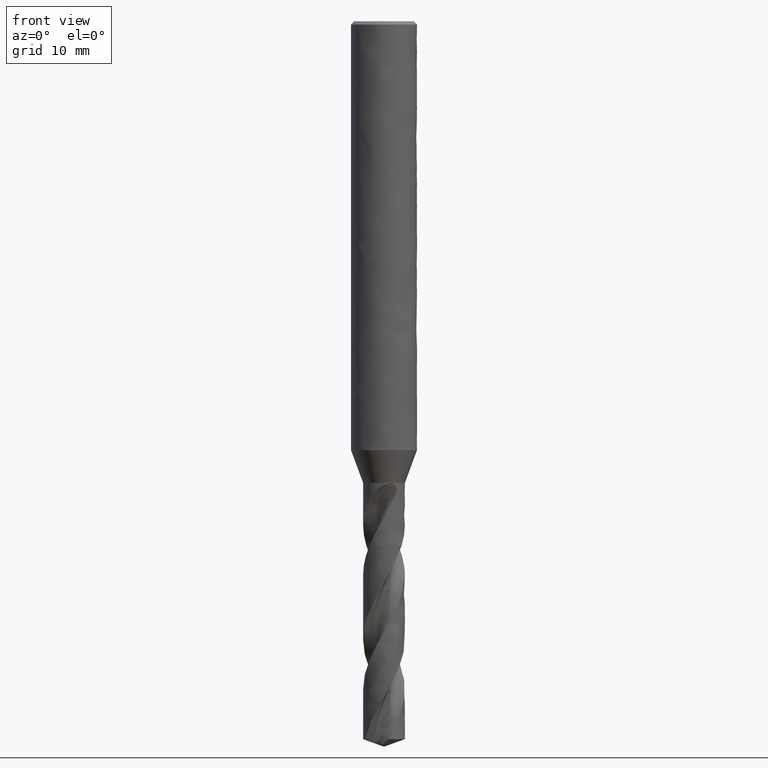
[diagram: clean part render]
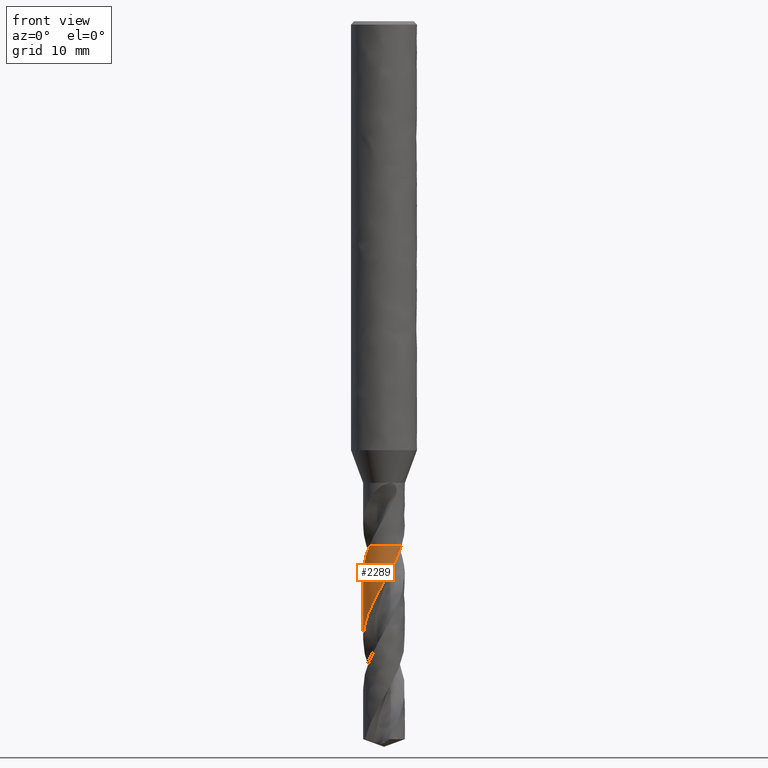
[diagram: same view with one face highlighted and labeled with its STEP entity id]
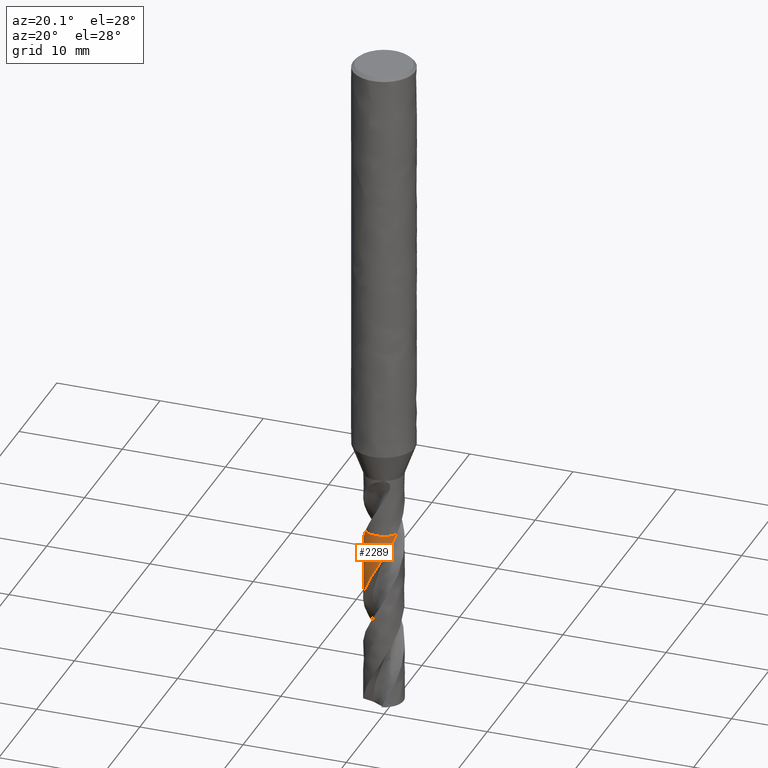
[diagram: same view with one face highlighted and labeled with its STEP entity id]
A machine part, front view. The second image highlights one B-rep face of the part: STEP entity #2289.
A second angle (auxiliary view) of the same face is appended — the face is thin or edge-on in the first view.
In plain terms, the highlighted face is a freeform B-spline surface patch.
Its self-contained STEP definition (entity closure, byte-faithful):
#1763 = EDGE_CURVE('', #1764, #1766, #1768, .T.);
#1764 = VERTEX_POINT('', #1765);
#1765 = CARTESIAN_POINT('', (1.60543953295215, -1.01615151726227, -47.7));
#1766 = VERTEX_POINT('', #1767);
#1767 = CARTESIAN_POINT('', (-1.31532390499543, -1.37110284987946, -47.7));
#1768 = CIRCLE('', #1769, 1.9);
#1769 = AXIS2_PLACEMENT_3D('', #1770, #1771, #1772);
#1770 = CARTESIAN_POINT('', (1.78846354082427E-31, 2.92078261596644E-15, -47.7));
#1771 = DIRECTION('', (3.74939945665464E-33, 6.12323399573677E-17, -1.));
#1772 = DIRECTION('', (-1., 6.12323399573677E-17, 0.));
#1932 = EDGE_CURVE('', #1764, #1933, #1935, .T.);
#1933 = VERTEX_POINT('', #1934);
#1934 = CARTESIAN_POINT('', (-1.9, 3.56066484574798E-15, -56.2500698524188));
#1935 = B_SPLINE_CURVE_WITH_KNOTS('', 3, (#1936, #1937, #1938, #1939, #1940, #1941, #1942, #1943, #1944, #1945, #1946, #1947, #1948, #1949, #1950, #1951, #1952, #1953, #1954, #1955, #1956, #1957, #1958, #1959, #1960, #1961, #1962, #1963, #1964, #1965, #1966, #1967, #1968, #1969, #1970, #1971, #1972, #1973, #1974, #1975, #1976, #1977, #1978, #1979, #1980, #1981, #1982, #1983, #1984, #1985, #1986, #1987, #1988, #1989, #1990, #1991, #1992, #1993, #1994, #1995, #1996, #1997, #1998, #1999, #2000, #2001, #2002, #2003, #2004, #2005, #2006, #2007, #2008), .UNSPECIFIED., .F., .U., (4, 3, 3, 3, 3, 3, 3, 3, 3, 3, 3, 3, 3, 3, 3, 3, 3, 3, 3, 3, 3, 3, 3, 3, 4), (5.42334190741654, 5.70895392122752, 6.15243442513517, 6.59572866186165, 7.03883998382538, 7.48176861802565, 7.92451398278888, 8.36707418705047, 8.80944604505749, 9.25162498138496, 9.29054658212998, 9.73511941349097, 10.1794730899651, 10.6236180970391, 11.0675628904853, 11.5113141666037, 11.9548770632099, 12.398255305419, 12.841451305965, 13.2844662265324, 13.7273000042402, 14.1699513369416, 14.6124176096707, 15.0546948859254, 15.2750791439534), .UNSPECIFIED.);
#1936 = CARTESIAN_POINT('', (1.60543953295215, -1.01615151726227, -47.7));
#1937 = CARTESIAN_POINT('', (1.58008675136189, -1.05620691957568, -47.7825627258739));
#1938 = CARTESIAN_POINT('', (1.55322471463771, -1.09532625594696, -47.8651668193882));
#1939 = CARTESIAN_POINT('', (1.52495102457178, -1.1333685952317, -47.9477330435017));
#1940 = CARTESIAN_POINT('', (1.48104940380148, -1.19243836463919, -48.0759367215861));
#1941 = CARTESIAN_POINT('', (1.4336932934455, -1.24897499804431, -48.2041957079818));
#1942 = CARTESIAN_POINT('', (1.38324580482683, -1.30254790446608, -48.3324055657466));
#1943 = CARTESIAN_POINT('', (1.33281950476419, -1.3560983096185, -48.4605615738188));
#1944 = CARTESIAN_POINT('', (1.27926241840096, -1.40673247292511, -48.5887752228034));
#1945 = CARTESIAN_POINT('', (1.22297988617171, -1.45407021770595, -48.7169385347141));
#1946 = CARTESIAN_POINT('', (1.16672057758305, -1.50138842969877, -48.8450489630999));
#1947 = CARTESIAN_POINT('', (1.10769202787491, -1.54545160600958, -48.9732163800636));
#1948 = CARTESIAN_POINT('', (1.04634137322844, -1.5859286650636, -49.1013339421503));
#1949 = CARTESIAN_POINT('', (0.985016012482921, -1.62638903606876, -49.2293986834002));
#1950 = CARTESIAN_POINT('', (0.921319973519808, -1.66329958739044, -49.3575204052324));
#1951 = CARTESIAN_POINT('', (0.855734606838548, -1.69638388422517, -49.4855922929521));
#1952 = CARTESIAN_POINT('', (0.790176377245074, -1.72945449185584, -49.6136111886975));
#1953 = CARTESIAN_POINT('', (0.722676498391871, -1.75872919870176, -49.7416868998933));
#1954 = CARTESIAN_POINT('', (0.653744383368588, -1.78398942856006, -49.8697129461897));
#1955 = CARTESIAN_POINT('', (0.584841096439312, -1.80923909433975, -49.9976854507241));
#1956 = CARTESIAN_POINT('', (0.514450014123744, -1.83049844688566, -50.1257146134006));
#1957 = CARTESIAN_POINT('', (0.443101628166171, -1.84760952236033, -50.2536942578985));
#1958 = CARTESIAN_POINT('', (0.371783606893754, -1.86471331564617, -50.3816194363905));
#1959 = CARTESIAN_POINT('', (0.299450266621204, -1.87768647922472, -50.5096011173969));
#1960 = CARTESIAN_POINT('', (0.226645974846591, -1.88643356683615, -50.637533422749));
#1961 = CARTESIAN_POINT('', (0.153873433568745, -1.89517683977718, -50.7654099358648));
#1962 = CARTESIAN_POINT('', (0.0805702887199169, -1.89970495065151, -50.8933428192128));
#1963 = CARTESIAN_POINT('', (0.00728733060199692, -1.89998602489957, -51.0212264352047));
#1964 = CARTESIAN_POINT('', (0.000836797112163438, -1.90001076569739, -51.0324830434113));
#1965 = CARTESIAN_POINT('', (-0.00561383600286603, -1.90000265622229, -51.043739714659));
#1966 = CARTESIAN_POINT('', (-0.0120641948200548, -1.89996169835166, -51.0549963756342));
#1967 = CARTESIAN_POINT('', (-0.0857419014857863, -1.89949386670649, -51.1835729384071));
#1968 = CARTESIAN_POINT('', (-0.159416567179547, -1.89473300060763, -51.3122068362747));
#1969 = CARTESIAN_POINT('', (-0.23252952085285, -1.88571737594262, -51.440790545731));
#1970 = CARTESIAN_POINT('', (-0.305606433050031, -1.87670619558474, -51.569310869064));
#1971 = CARTESIAN_POINT('', (-0.378182493114162, -1.86343703944109, -51.6978884864034));
#1972 = CARTESIAN_POINT('', (-0.44970859836389, -1.84601250715125, -51.8264159617526));
#1973 = CARTESIAN_POINT('', (-0.5212011148075, -1.8285961574576, -51.954883080335));
#1974 = CARTESIAN_POINT('', (-0.591703398443809, -1.8070140447545, -52.0834074170424));
#1975 = CARTESIAN_POINT('', (-0.660683092683357, -1.78143140509051, -52.2118816947457));
#1976 = CARTESIAN_POINT('', (-0.729631691954827, -1.75586029768065, -52.3402980582527));
#1977 = CARTESIAN_POINT('', (-0.797115599888666, -1.72627132018875, -52.4687715270375));
#1978 = CARTESIAN_POINT('', (-0.862626134024383, -1.69288988209459, -52.5971950560344));
#1979 = CARTESIAN_POINT('', (-0.928108111853767, -1.65952299510408, -52.7255626046965));
#1980 = CARTESIAN_POINT('', (-0.991672121880814, -1.62233960709057, -52.8539871132649));
#1981 = CARTESIAN_POINT('', (-1.05283977136872, -1.58162208375587, -52.9823618306629));
#1982 = CARTESIAN_POINT('', (-1.11398145421136, -1.54092184566089, -53.1106820509407));
#1983 = CARTESIAN_POINT('', (-1.17277902269471, -1.49665705470894, -53.2390590639722));
#1984 = CARTESIAN_POINT('', (-1.22879061041002, -1.44916308115, -53.3673864508043));
#1985 = CARTESIAN_POINT('', (-1.28477888060702, -1.40168887924266, -53.4956604151874));
#1986 = CARTESIAN_POINT('', (-1.3380295814826, -1.3509491068244, -53.6239910002187));
#1987 = CARTESIAN_POINT('', (-1.38814315807265, -1.29732747319097, -53.7522721213269));
#1988 = CARTESIAN_POINT('', (-1.43823613649013, -1.24372787964604, -53.8805005150736));
#1989 = CARTESIAN_POINT('', (-1.48523589063568, -1.18720459132823, -54.0087853750953));
#1990 = CARTESIAN_POINT('', (-1.52879043060276, -1.12818430200806, -54.1370209059539));
#1991 = CARTESIAN_POINT('', (-1.57232717515844, -1.06918812705877, -54.2652040426412));
#1992 = CARTESIAN_POINT('', (-1.61245743583811, -1.00764834773471, -54.3934435372762));
#1993 = CARTESIAN_POINT('', (-1.64888142186169, -0.944028631260382, -54.5216337796273));
#1994 = CARTESIAN_POINT('', (-1.68529051460588, -0.88043492803491, -54.6497716067075));
#1995 = CARTESIAN_POINT('', (-1.71802629527126, -0.814710757277576, -54.777965754276));
#1996 = CARTESIAN_POINT('', (-1.74684507270828, -0.747350180273478, -54.9061106511152));
#1997 = CARTESIAN_POINT('', (-1.77565197697235, -0.680017355445301, -55.0342027529832));
#1998 = CARTESIAN_POINT('', (-1.80056862281486, -0.610994573708265, -55.1623511822716));
#1999 = CARTESIAN_POINT('', (-1.82141042668573, -0.540799461501702, -55.2904503588002));
#2000 = CARTESIAN_POINT('', (-1.84224351718932, -0.47063369588139, -55.4184959806949));
#2001 = CARTESIAN_POINT('', (-1.85902207406324, -0.399239734322387, -55.5465978994461));
#2002 = CARTESIAN_POINT('', (-1.87162273343255, -0.32715186641475, -55.6746506084976));
#2003 = CARTESIAN_POINT('', (-1.88421801051547, -0.255094790352115, -55.8026486207008));
#2004 = CARTESIAN_POINT('', (-1.89264914189863, -0.182286235414097, -55.9307028475217));
#2005 = CARTESIAN_POINT('', (-1.89685530350614, -0.109270112845257, -56.0587079583299));
#2006 = CARTESIAN_POINT('', (-1.89895120997655, -0.0728865931386133, -56.1224921789621));
#2007 = CARTESIAN_POINT('', (-1.9, -0.0364406682564293, -56.1862838208063));
#2008 = CARTESIAN_POINT('', (-1.9, 3.29289401419838E-15, -56.2500698524188));
#2289 = ADVANCED_FACE('', (#2290), #2336, .T.);
#2290 = FACE_OUTER_BOUND('', #2291, .T.);
#2291 = EDGE_LOOP('', (#2292, #2293, #2308, #2329, #2335));
#2292 = ORIENTED_EDGE('', *, *, #1763, .T.);
#2293 = ORIENTED_EDGE('', *, *, #2294, .T.);
#2294 = EDGE_CURVE('', #1766, #2295, #2297, .T.);
#2295 = VERTEX_POINT('', #2296);
#2296 = CARTESIAN_POINT('', (-1.63494574529864, -0.967963020951669, -48.5956909922031));
#2297 = B_SPLINE_CURVE_WITH_KNOTS('', 3, (#2298, #2299, #2300, #2301, #2302, #2303, #2304, #2305, #2306, #2307), .UNSPECIFIED., .F., .U., (4, 3, 3, 4), (2.27898584937196, 2.54642865037391, 2.98959854524806, 3.31257766911618), .UNSPECIFIED.);
#2298 = CARTESIAN_POINT('', (-1.31532390499543, -1.37110284987946, -47.7));
#2299 = CARTESIAN_POINT('', (-1.34744710788131, -1.34028647701251, -47.7772382395254));
#2300 = CARTESIAN_POINT('', (-1.37849682783798, -1.30833004222543, -47.8545151716453));
#2301 = CARTESIAN_POINT('', (-1.40837227520699, -1.27533820393975, -47.9317569407624));
#2302 = CARTESIAN_POINT('', (-1.45787780992411, -1.22066860935731, -48.0597515122045));
#2303 = CARTESIAN_POINT('', (-1.50421343752984, -1.16309060923377, -48.1878017124929));
#2304 = CARTESIAN_POINT('', (-1.5470242858669, -1.10304843907146, -48.3158030481302));
#2305 = CARTESIAN_POINT('', (-1.57822453310365, -1.05929012484827, -48.4090895274608));
#2306 = CARTESIAN_POINT('', (-1.60757081210195, -1.01420087259372, -48.5023995841037));
#2307 = CARTESIAN_POINT('', (-1.63494574529865, -0.967963020951637, -48.5956909922032));
#2308 = ORIENTED_EDGE('', *, *, #2309, .T.);
#2309 = EDGE_CURVE('', #2295, #2310, #2312, .T.);
#2310 = VERTEX_POINT('', #2311);
#2311 = CARTESIAN_POINT('', (-1.9, 3.20004173749549E-15, -50.3606475552541));
#2312 = B_SPLINE_CURVE_WITH_KNOTS('', 3, (#2313, #2314, #2315, #2316, #2317, #2318, #2319, #2320, #2321, #2322, #2323, #2324, #2325, #2326, #2327, #2328), .UNSPECIFIED., .F., .U., (4, 3, 3, 3, 3, 4), (0., 0.442846222718107, 0.885506581450105, 1.32797894467612, 1.770259551117, 2.03606109172695), .UNSPECIFIED.);
#2313 = CARTESIAN_POINT('', (-1.63494574529864, -0.967963020951669, -48.5956909922031));
#2314 = CARTESIAN_POINT('', (-1.67248032529914, -0.904564935957614, -48.7236055991725));
#2315 = CARTESIAN_POINT('', (-1.70633132203693, -0.838962674490111, -48.8515801786184));
#2316 = CARTESIAN_POINT('', (-1.73624489219259, -0.771656448385655, -48.9795073407107));
#2317 = CARTESIAN_POINT('', (-1.7661459075265, -0.704378470921094, -49.1073808113609));
#2318 = CARTESIAN_POINT('', (-1.79213771815028, -0.635342060959557, -49.2353145702266));
#2319 = CARTESIAN_POINT('', (-1.81402714765482, -0.565071241146968, -49.3632007939752));
#2320 = CARTESIAN_POINT('', (-1.83590728083478, -0.494830264978758, -49.4910327051231));
#2321 = CARTESIAN_POINT('', (-1.85370656387567, -0.423298071763782, -49.6189247784918));
#2322 = CARTESIAN_POINT('', (-1.86729418650883, -0.351016268897193, -49.7467694105821));
#2323 = CARTESIAN_POINT('', (-1.88087592059607, -0.278765791209967, -49.8745586379111));
#2324 = CARTESIAN_POINT('', (-1.89026081582084, -0.205707048704722, -50.002407914309));
#2325 = CARTESIAN_POINT('', (-1.89538185991959, -0.132391861865694, -50.1302098702185));
#2326 = CARTESIAN_POINT('', (-1.89845950201187, -0.0883309436881171, -50.2070162150571));
#2327 = CARTESIAN_POINT('', (-1.9, -0.044160225890392, -50.2838365830674));
#2328 = CARTESIAN_POINT('', (-1.9, -1.71269514647082E-15, -50.3606475552541));
#2329 = ORIENTED_EDGE('', *, *, #2330, .T.);
#2330 = EDGE_CURVE('', #2310, #1933, #2331, .T.);
#2331 = LINE('', #2332, #2333);
#2332 = CARTESIAN_POINT('', (-1.9, 3.20004173749549E-15, -50.3606475552541));
#2333 = VECTOR('', #2334, 5.88942229716467);
#2334 = DIRECTION('', (0., 3.60623108252488E-16, -5.88942229716467));
#2335 = ORIENTED_EDGE('', *, *, #1932, .F.);
#2336 = (
   BOUNDED_SURFACE ()
   B_SPLINE_SURFACE (2, 1, ((#2337, #2338), (#2339, #2340), (#2341, #2342), (#2343, #2344), (#2345, #2346)), .UNSPECIFIED., .F., .F., .U.)
   B_SPLINE_SURFACE_WITH_KNOTS ((3, 2, 3), (2, 2), (7.06136815983606, 8.95353906273091, 11.9380520836412), (0.244546436894087, 0.611369089105413), .UNSPECIFIED.)
   GEOMETRIC_REPRESENTATION_ITEM ()
   RATIONAL_B_SPLINE_SURFACE (((0.864071227321431, 0.864071227321431), (0.814306715229209, 0.814306715229209), (1., 1.), (0.707106781186548, 0.707106781186548), (1., 1.)))
   REPRESENTATION_ITEM ('')
   SURFACE ()
);
#2337 = CARTESIAN_POINT('', (1.60543953295214, -1.01615151726226, -47.7));
#2338 = CARTESIAN_POINT('', (1.60543953295214, -1.01615151726226, -56.2500698524188));
#2339 = CARTESIAN_POINT('', (1.04601393122151, -1.9, -47.7));
#2340 = CARTESIAN_POINT('', (1.04601393122151, -1.9, -56.2500698524188));
#2341 = CARTESIAN_POINT('', (2.32682891837997E-16, -1.9, -47.7));
#2342 = CARTESIAN_POINT('', (2.32682891837997E-16, -1.9, -56.2500698524188));
#2343 = CARTESIAN_POINT('', (-1.9, -1.9, -47.7));
#2344 = CARTESIAN_POINT('', (-1.9, -1.9, -56.2500698524188));
#2345 = CARTESIAN_POINT('', (-1.9, 3.03712406188544E-15, -47.7));
#2346 = CARTESIAN_POINT('', (-1.9, 3.56066484574798E-15, -56.2500698524188));